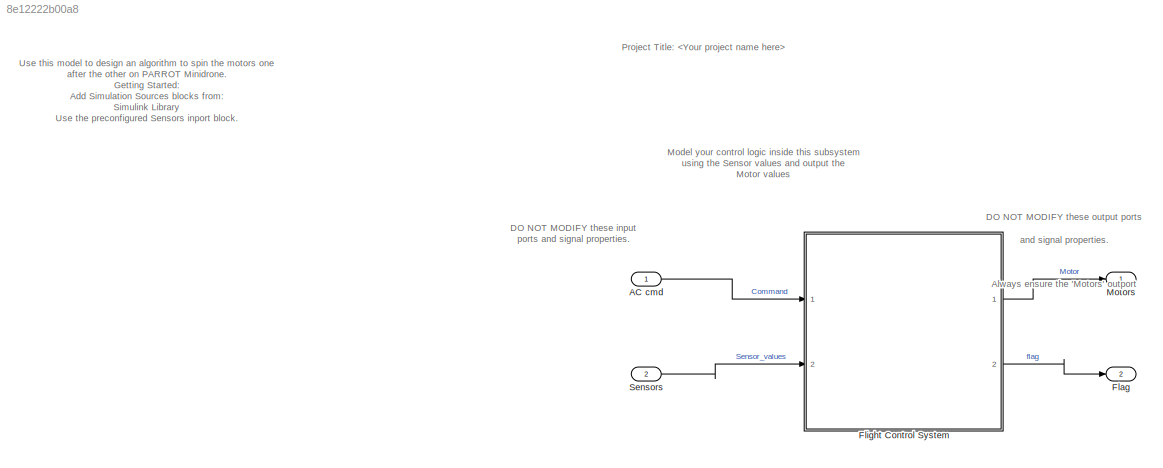
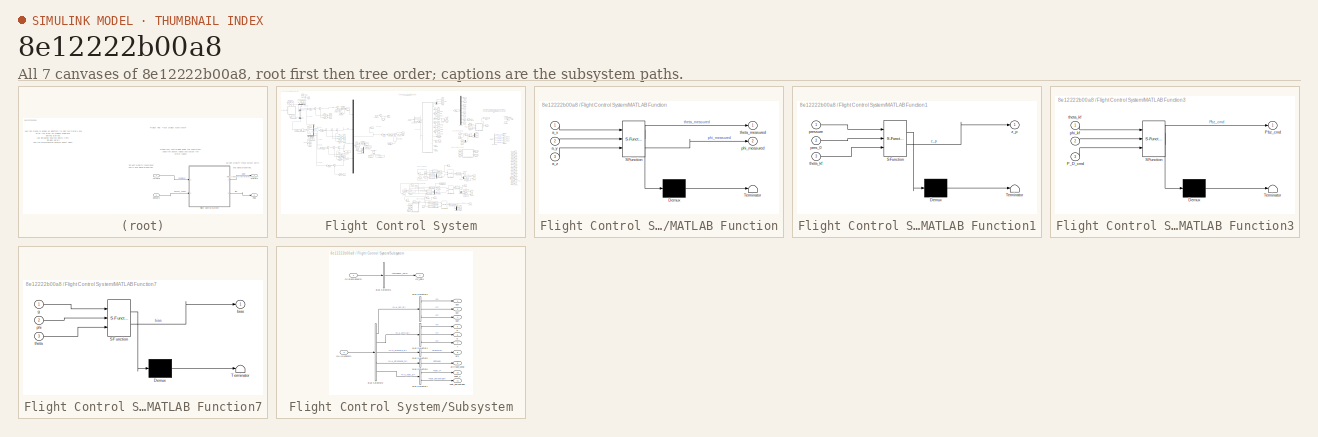
[diagram: thumbnail index - all 7 canvases of the model, root first then tree order]
MODEL slx_8e12222b00a8
KIND model
CONFIG AbsTol = auto
CONFIG EnableMultiTasking = off
CONFIG FixedStep = auto
CONFIG InitFcn = load('BusDefinitions.mat')
CONFIG MaxStep = auto
CONFIG MinStep = auto
CONFIG RelTol = 1e-3
CONFIG SampleTimeConstraint = Unconstrained
CONFIG SolverName = FixedStepAuto
CONFIG StartTime = 0.0
CONFIG StopTime = 30
BLOCK [Inport] AC cmd
  BusOutputAsStruct = on
  OutDataTypeStr = Bus: CommandBus
BLOCK [Outport] Flag
  OutDataTypeStr = uint8
  Port = 2
  PortDimensions = 1
  VectorParamsAs1DForOutWhenUnconnected = off
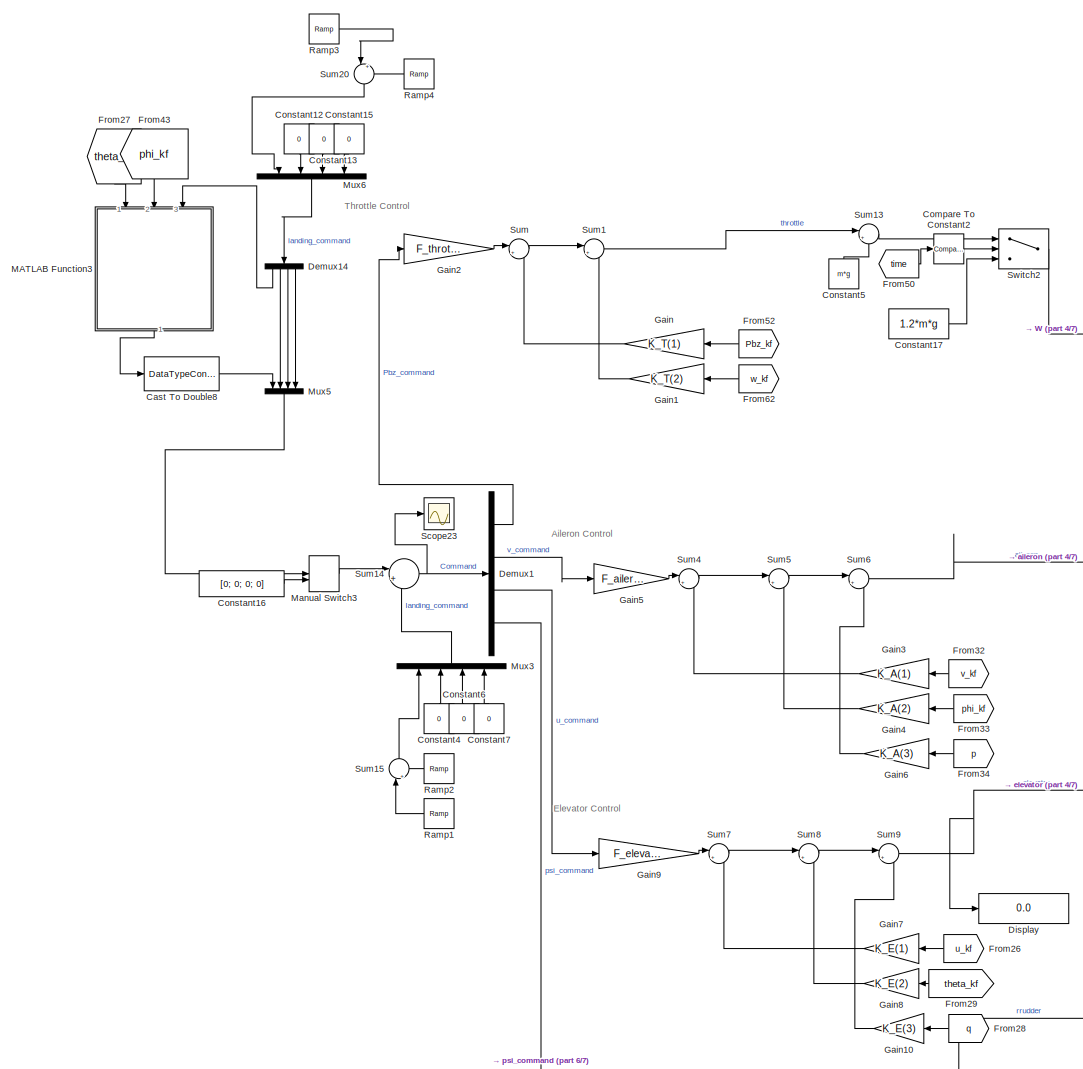
[diagram: Flight Control System - part 1/7, top left region]
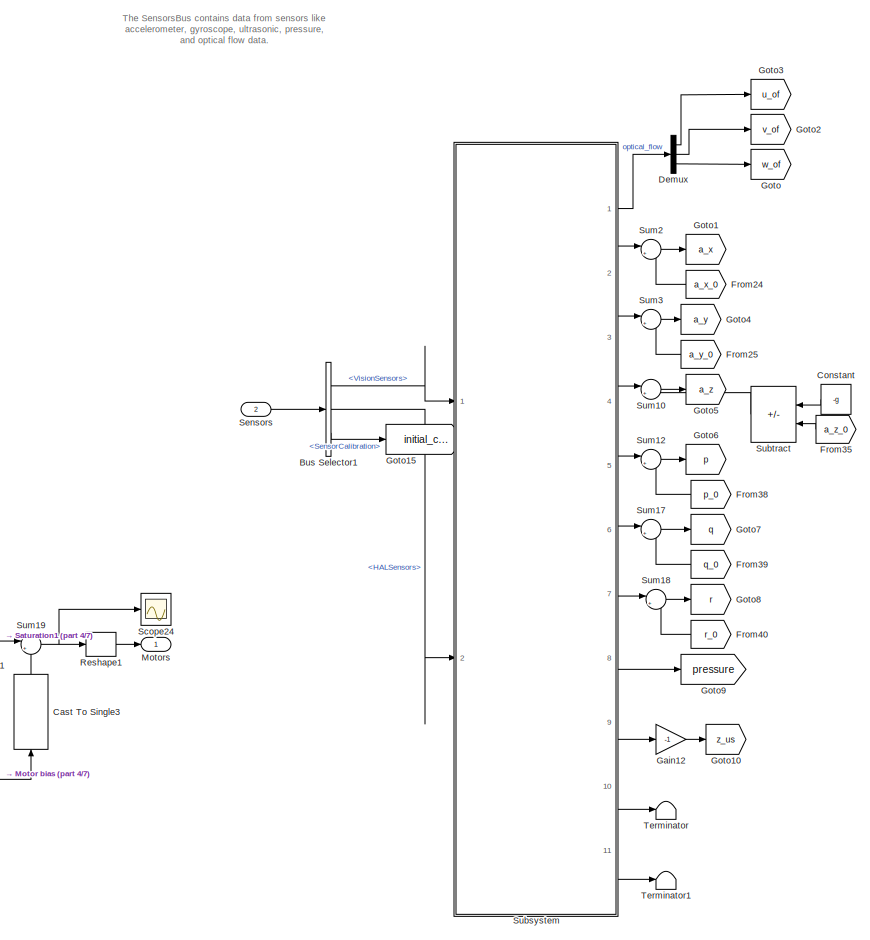
[diagram: Flight Control System - part 2/7, top center region]
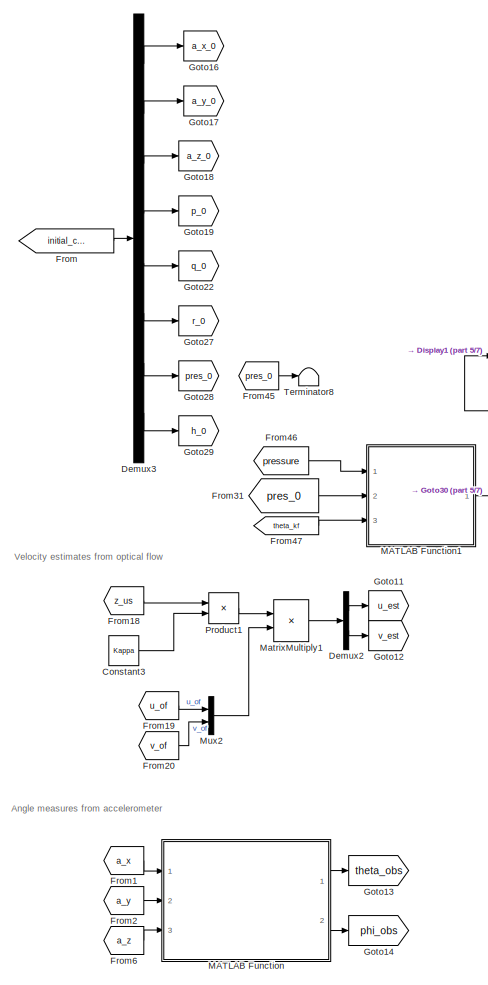
[diagram: Flight Control System - part 3/7, top right region]
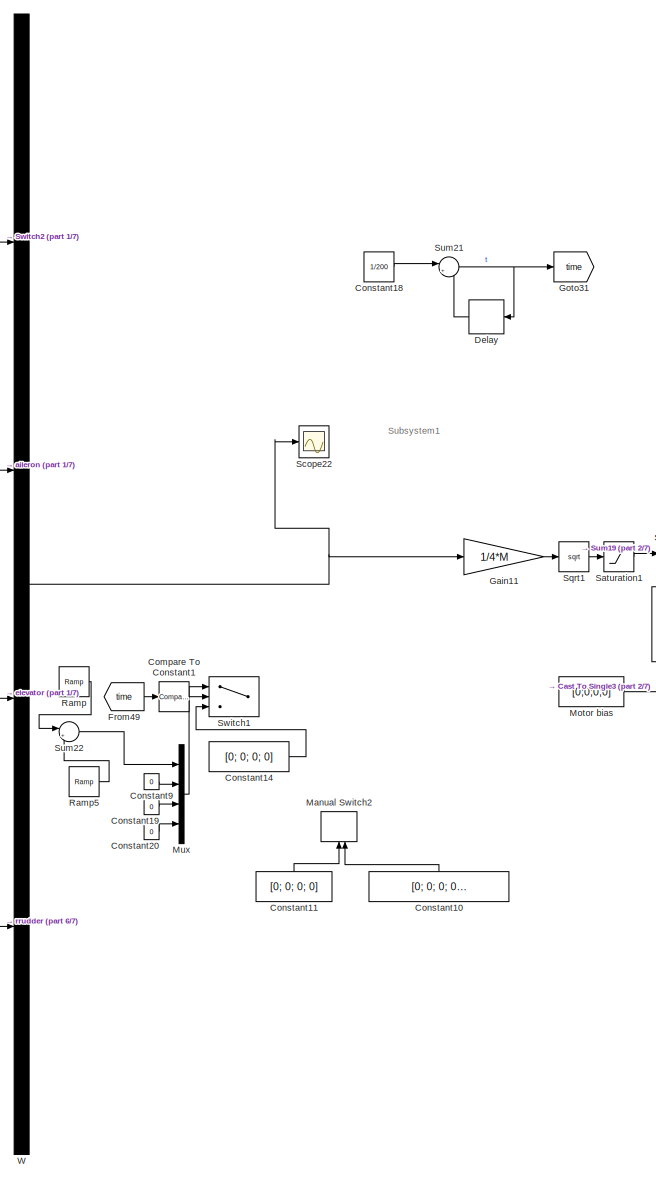
[diagram: Flight Control System - part 4/7, central region]
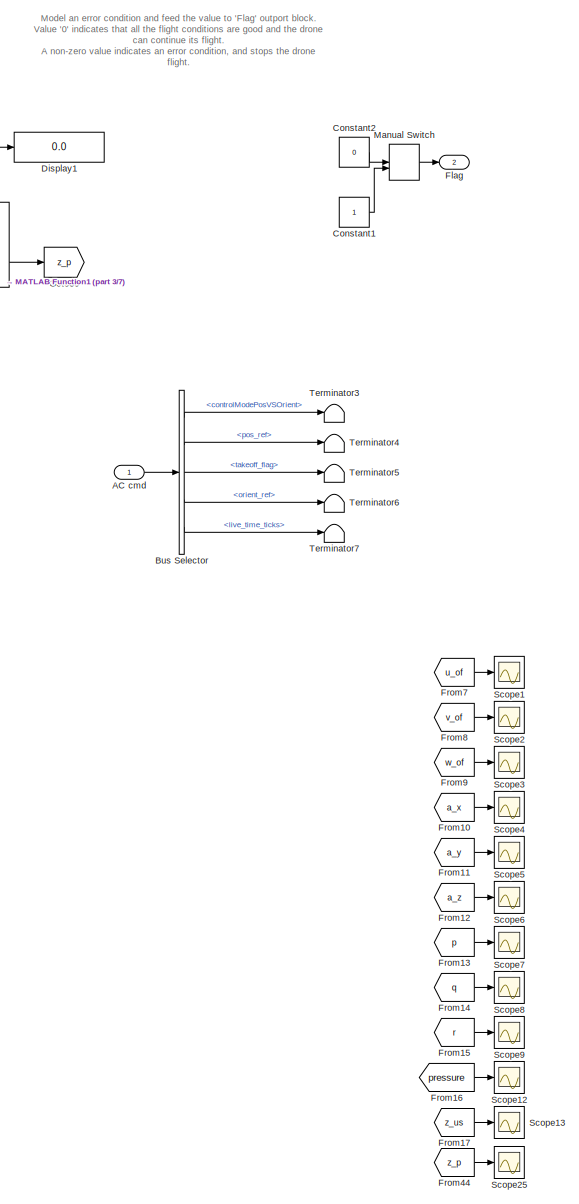
[diagram: Flight Control System - part 5/7, middle right region]
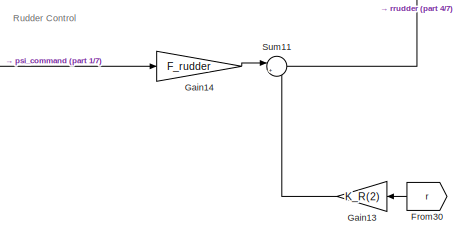
[diagram: Flight Control System - part 6/7, middle left region]
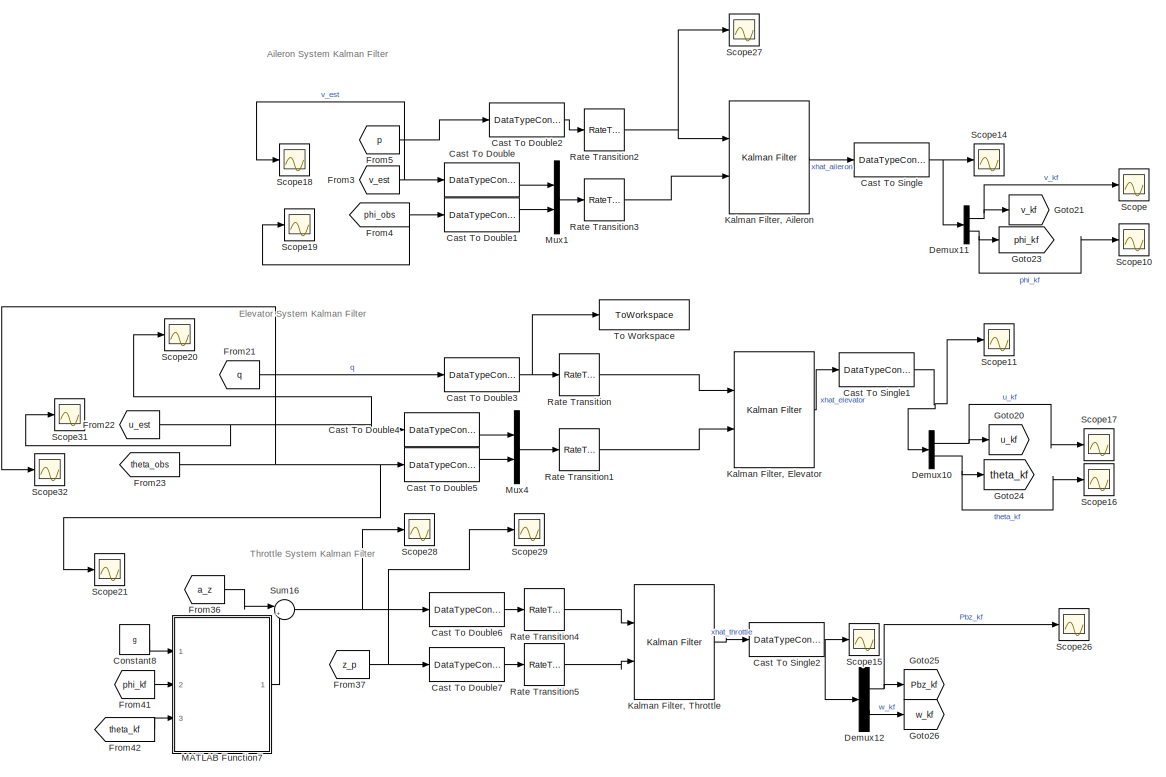
[diagram: Flight Control System - part 7/7, bottom center region]
BLOCK [SubSystem] Flight Control System
  InitFcn = codertarget.parrot.internal.fcsSubsystemCallback(gcb);
  Ports = [2, 2]
  RTWSystemCode = Reusable function
  RequestExecContextInheritance = off
BLOCK [Inport] Flight Control System/AC cmd
BLOCK [BusSelector] Flight Control System/Bus Selector
  OutputSignals = controlModePosVSOrient,pos_ref,takeoff_flag,orient_ref,live_time_ticks
  Ports = [1, 5]
BLOCK [BusSelector] Flight Control System/Bus Selector1
  OutputSignals = VisionSensors,HALSensors,SensorCalibration
  Ports = [1, 3]
BLOCK [DataTypeConversion] Flight Control System/Cast To Double
  OutDataTypeStr = double
  RndMeth = Floor
  SaturateOnIntegerOverflow = off
BLOCK [DataTypeConversion] Flight Control System/Cast To Double1
  OutDataTypeStr = double
  RndMeth = Floor
  SaturateOnIntegerOverflow = off
BLOCK [DataTypeConversion] Flight Control System/Cast To Double2
  OutDataTypeStr = double
  RndMeth = Floor
  SaturateOnIntegerOverflow = off
BLOCK [DataTypeConversion] Flight Control System/Cast To Double3
  OutDataTypeStr = double
  RndMeth = Floor
  SaturateOnIntegerOverflow = off
BLOCK [DataTypeConversion] Flight Control System/Cast To Double4
  OutDataTypeStr = double
  RndMeth = Floor
  SaturateOnIntegerOverflow = off
BLOCK [DataTypeConversion] Flight Control System/Cast To Double5
  OutDataTypeStr = double
  RndMeth = Floor
  SaturateOnIntegerOverflow = off
BLOCK [DataTypeConversion] Flight Control System/Cast To Double6
  OutDataTypeStr = double
  RndMeth = Floor
  SaturateOnIntegerOverflow = off
BLOCK [DataTypeConversion] Flight Control System/Cast To Double7
  OutDataTypeStr = double
  RndMeth = Floor
  SaturateOnIntegerOverflow = off
BLOCK [DataTypeConversion] Flight Control System/Cast To Double8
  OutDataTypeStr = double
  RndMeth = Floor
  SaturateOnIntegerOverflow = off
BLOCK [DataTypeConversion] Flight Control System/Cast To Single
  OutDataTypeStr = single
  RndMeth = Floor
  SaturateOnIntegerOverflow = off
BLOCK [DataTypeConversion] Flight Control System/Cast To Single1
  OutDataTypeStr = single
  RndMeth = Floor
  SaturateOnIntegerOverflow = off
BLOCK [DataTypeConversion] Flight Control System/Cast To Single2
  OutDataTypeStr = single
  RndMeth = Floor
  SaturateOnIntegerOverflow = off
BLOCK [DataTypeConversion] Flight Control System/Cast To Single3
  NameLocation = right
  OutDataTypeStr = single
  RndMeth = Floor
  SaturateOnIntegerOverflow = off
BLOCK [Reference] Flight Control System/Compare To Constant1  REF=simulink/Logic and Bit
Operations/Compare
To Constant
  Commented = on
  Ports = [1, 1]
  SourceBlock = simulink/Logic and Bit\nOperations/Compare\nTo Constant
  SourceProductBaseCode = SL
  SourceType = Compare To Constant
BLOCK [Reference] Flight Control System/Compare To Constant2  REF=simulink/Logic and Bit
Operations/Compare
To Constant
  Ports = [1, 1]
  SourceBlock = simulink/Logic and Bit\nOperations/Compare\nTo Constant
  SourceProductBaseCode = SL
  SourceType = Compare To Constant
BLOCK [Constant] Flight Control System/Constant
  NameLocation = top
  Value = -g
BLOCK [Constant] Flight Control System/Constant1
  OutDataTypeStr = uint8
BLOCK [Constant] Flight Control System/Constant10
  Commented = on
  NameLocation = right
  Value = [0; 0; 0; 0.004]
BLOCK [Constant] Flight Control System/Constant11
  Commented = on
  NameLocation = right
  Value = [0; 0; 0; 0]
BLOCK [Constant] Flight Control System/Constant12
  NameLocation = left
  Value = 0
BLOCK [Constant] Flight Control System/Constant13
  NameLocation = left
  Value = 0
BLOCK [Constant] Flight Control System/Constant14
  Commented = on
  Value = [0; 0; 0; 0]
BLOCK [Constant] Flight Control System/Constant15
  NameLocation = left
  Value = 0
BLOCK [Constant] Flight Control System/Constant16
  Value = [0; 0; 0; 0]
BLOCK [Constant] Flight Control System/Constant17
  Value = 1.2*m*g
BLOCK [Constant] Flight Control System/Constant18
  Value = 1/200
BLOCK [Constant] Flight Control System/Constant19
  Commented = on
  Value = 0
BLOCK [Constant] Flight Control System/Constant2
  OutDataTypeStr = uint8
  Value = 0
BLOCK [Constant] Flight Control System/Constant20
  Commented = on
  Value = 0
BLOCK [Constant] Flight Control System/Constant3
  Value = Kappa
BLOCK [Constant] Flight Control System/Constant4
  NameLocation = right
  Value = 0
BLOCK [Constant] Flight Control System/Constant5
  NameLocation = right
  Value = m*g
BLOCK [Constant] Flight Control System/Constant6
  NameLocation = right
  Value = 0
BLOCK [Constant] Flight Control System/Constant7
  NameLocation = right
  Value = 0
BLOCK [Constant] Flight Control System/Constant8
  Value = g
BLOCK [Constant] Flight Control System/Constant9
  Commented = on
  Value = 0
BLOCK [Delay] Flight Control System/Delay
  DelayLength = 1
  InputPortMap = u0
  NameLocation = top
  Ports = [1, 1]
  SampleTime = 1/200
BLOCK [Demux] Flight Control System/Demux
  Outputs = 3
  Ports = [1, 3]
BLOCK [Demux] Flight Control System/Demux1
  Ports = [1, 4]
BLOCK [Demux] Flight Control System/Demux10
  Outputs = 2
  Ports = [1, 2]
BLOCK [Demux] Flight Control System/Demux11
  Outputs = 2
  Ports = [1, 2]
BLOCK [Demux] Flight Control System/Demux12
  Outputs = 2
  Ports = [1, 2]
BLOCK [Demux] Flight Control System/Demux14
  NameLocation = left
  Ports = [1, 4]
BLOCK [Demux] Flight Control System/Demux2
  Outputs = 2
  Ports = [1, 2]
BLOCK [Demux] Flight Control System/Demux3
  Outputs = 8
  Ports = [1, 8]
BLOCK [Display] Flight Control System/Display
  Decimation = 1
  Ports = [1]
BLOCK [Display] Flight Control System/Display1
  Decimation = 1
  Ports = [1]
BLOCK [Outport] Flight Control System/Flag
  Port = 2
  VectorParamsAs1DForOutWhenUnconnected = off
BLOCK [From] Flight Control System/From
  GotoTag = initial_conditions
BLOCK [From] Flight Control System/From1
  GotoTag = a_x
BLOCK [From] Flight Control System/From10
  GotoTag = a_x
BLOCK [From] Flight Control System/From11
  GotoTag = a_y
  NameLocation = top
BLOCK [From] Flight Control System/From12
  GotoTag = a_z
BLOCK [From] Flight Control System/From13
  GotoTag = p
BLOCK [From] Flight Control System/From14
  GotoTag = q
BLOCK [From] Flight Control System/From15
  GotoTag = r
BLOCK [From] Flight Control System/From16
  GotoTag = pressure
BLOCK [From] Flight Control System/From17
  GotoTag = z_us
BLOCK [From] Flight Control System/From18
  GotoTag = z_us
BLOCK [From] Flight Control System/From19
  GotoTag = u_of
BLOCK [From] Flight Control System/From2
  GotoTag = a_y
BLOCK [From] Flight Control System/From20
  GotoTag = v_of
BLOCK [From] Flight Control System/From21
  GotoTag = q
BLOCK [From] Flight Control System/From22
  GotoTag = u_est
BLOCK [From] Flight Control System/From23
  GotoTag = theta_obs
BLOCK [From] Flight Control System/From24
  GotoTag = a_x_0
  NameLocation = top
BLOCK [From] Flight Control System/From25
  GotoTag = a_y_0
  NameLocation = top
BLOCK [From] Flight Control System/From26
  GotoTag = u_kf
  NameLocation = top
BLOCK [From] Flight Control System/From27
  GotoTag = theta_kf
  NameLocation = left
BLOCK [From] Flight Control System/From28
  GotoTag = q
  NameLocation = top
BLOCK [From] Flight Control System/From29
  GotoTag = theta_kf
  NameLocation = top
BLOCK [From] Flight Control System/From3
  GotoTag = v_est
BLOCK [From] Flight Control System/From30
  GotoTag = r
  NameLocation = top
BLOCK [From] Flight Control System/From31
  GotoTag = pres_0
BLOCK [From] Flight Control System/From32
  GotoTag = v_kf
  NameLocation = top
BLOCK [From] Flight Control System/From33
  GotoTag = phi_kf
  NameLocation = top
BLOCK [From] Flight Control System/From34
  GotoTag = p
  NameLocation = top
BLOCK [From] Flight Control System/From35
  GotoTag = a_z_0
  NameLocation = top
BLOCK [From] Flight Control System/From36
  GotoTag = a_z
BLOCK [From] Flight Control System/From37
  GotoTag = z_p
BLOCK [From] Flight Control System/From38
  GotoTag = p_0
  NameLocation = top
BLOCK [From] Flight Control System/From39
  GotoTag = q_0
  NameLocation = top
BLOCK [From] Flight Control System/From4
  GotoTag = phi_obs
BLOCK [From] Flight Control System/From40
  GotoTag = r_0
  NameLocation = top
BLOCK [From] Flight Control System/From41
  GotoTag = phi_kf
BLOCK [From] Flight Control System/From42
  GotoTag = theta_kf
BLOCK [From] Flight Control System/From43
  GotoTag = phi_kf
  NameLocation = left
BLOCK [From] Flight Control System/From44
  GotoTag = z_p
BLOCK [From] Flight Control System/From45
  GotoTag = pres_0
BLOCK [From] Flight Control System/From46
  GotoTag = pressure
BLOCK [From] Flight Control System/From47
  GotoTag = theta_kf
BLOCK [From] Flight Control System/From49
  Commented = on
  GotoTag = time
BLOCK [From] Flight Control System/From5
  GotoTag = p
BLOCK [From] Flight Control System/From50
  GotoTag = time
BLOCK [From] Flight Control System/From52
  GotoTag = Pbz_kf
  NameLocation = top
BLOCK [From] Flight Control System/From6
  GotoTag = a_z
BLOCK [From] Flight Control System/From62
  GotoTag = w_kf
  NameLocation = top
BLOCK [From] Flight Control System/From7
  GotoTag = u_of
BLOCK [From] Flight Control System/From8
  GotoTag = v_of
BLOCK [From] Flight Control System/From9
  GotoTag = w_of
BLOCK [Gain] Flight Control System/Gain
  Gain = K_T(1)
BLOCK [Gain] Flight Control System/Gain1
  Gain = K_T(2)
BLOCK [Gain] Flight Control System/Gain10
  Gain = K_E(3)
BLOCK [Gain] Flight Control System/Gain11
  Gain = 1/4*M
  Multiplication = Matrix(K*u)
BLOCK [Gain] Flight Control System/Gain12
  Gain = -1
BLOCK [Gain] Flight Control System/Gain13
  Gain = K_R(2)
BLOCK [Gain] Flight Control System/Gain14
  Gain = F_rudder
BLOCK [Gain] Flight Control System/Gain2
  Gain = F_throttle
BLOCK [Gain] Flight Control System/Gain3
  Gain = K_A(1)
BLOCK [Gain] Flight Control System/Gain4
  Gain = K_A(2)
BLOCK [Gain] Flight Control System/Gain5
  Gain = F_aileron
BLOCK [Gain] Flight Control System/Gain6
  Gain = K_A(3)
BLOCK [Gain] Flight Control System/Gain7
  Gain = K_E(1)
BLOCK [Gain] Flight Control System/Gain8
  Gain = K_E(2)
BLOCK [Gain] Flight Control System/Gain9
  Gain = F_elevator
BLOCK [Goto] Flight Control System/Goto
  GotoTag = w_of
BLOCK [Goto] Flight Control System/Goto1
  GotoTag = a_x
BLOCK [Goto] Flight Control System/Goto10
  GotoTag = z_us
BLOCK [Goto] Flight Control System/Goto11
  GotoTag = u_est
BLOCK [Goto] Flight Control System/Goto12
  GotoTag = v_est
BLOCK [Goto] Flight Control System/Goto13
  GotoTag = theta_obs
BLOCK [Goto] Flight Control System/Goto14
  GotoTag = phi_obs
BLOCK [Goto] Flight Control System/Goto15
  GotoTag = initial_conditions
BLOCK [Goto] Flight Control System/Goto16
  GotoTag = a_x_0
BLOCK [Goto] Flight Control System/Goto17
  GotoTag = a_y_0
BLOCK [Goto] Flight Control System/Goto18
  GotoTag = a_z_0
BLOCK [Goto] Flight Control System/Goto19
  GotoTag = p_0
BLOCK [Goto] Flight Control System/Goto2
  GotoTag = v_of
BLOCK [Goto] Flight Control System/Goto20
  GotoTag = u_kf
BLOCK [Goto] Flight Control System/Goto21
  GotoTag = v_kf
BLOCK [Goto] Flight Control System/Goto22
  GotoTag = q_0
BLOCK [Goto] Flight Control System/Goto23
  GotoTag = phi_kf
BLOCK [Goto] Flight Control System/Goto24
  GotoTag = theta_kf
BLOCK [Goto] Flight Control System/Goto25
  GotoTag = Pbz_kf
BLOCK [Goto] Flight Control System/Goto26
  GotoTag = w_kf
BLOCK [Goto] Flight Control System/Goto27
  GotoTag = r_0
BLOCK [Goto] Flight Control System/Goto28
  GotoTag = pres_0
BLOCK [Goto] Flight Control System/Goto29
  GotoTag = h_0
BLOCK [Goto] Flight Control System/Goto3
  GotoTag = u_of
BLOCK [Goto] Flight Control System/Goto30
  GotoTag = z_p
BLOCK [Goto] Flight Control System/Goto31
  GotoTag = time
BLOCK [Goto] Flight Control System/Goto4
  GotoTag = a_y
BLOCK [Goto] Flight Control System/Goto5
  GotoTag = a_z
BLOCK [Goto] Flight Control System/Goto6
  GotoTag = p
BLOCK [Goto] Flight Control System/Goto7
  GotoTag = q
BLOCK [Goto] Flight Control System/Goto8
  GotoTag = r
BLOCK [Goto] Flight Control System/Goto9
  GotoTag = pressure
BLOCK [Reference] Flight Control System/Kalman Filter, Aileron  REF=ctrlSharedLib/Kalman Filter
  Ports = [2, 1]
  SourceBlock = ctrlSharedLib/Kalman Filter
  SourceProductBaseCode = CT,ID
  SourceType = ctrlKalmanFilter
BLOCK [Reference] Flight Control System/Kalman Filter, Elevator  REF=ctrlSharedLib/Kalman Filter
  Ports = [2, 1]
  SourceBlock = ctrlSharedLib/Kalman Filter
  SourceProductBaseCode = CT,ID
  SourceType = ctrlKalmanFilter
BLOCK [Reference] Flight Control System/Kalman Filter, Throttle  REF=ctrlSharedLib/Kalman Filter
  Ports = [2, 1]
  SourceBlock = ctrlSharedLib/Kalman Filter
  SourceProductBaseCode = CT,ID
  SourceType = ctrlKalmanFilter
BLOCK [SubSystem] Flight Control System/MATLAB Function
  ErrorFcn = Stateflow.Translate.translate
  PermitHierarchicalResolution = ExplicitOnly
  Ports = [3, 2]
  RequestExecContextInheritance = off
  SFBlockType = MATLAB Function
  TreatAsAtomicUnit = on
BLOCK [Demux] Flight Control System/MATLAB Function/ Demux 
  Outputs = 1
  Ports = [1, 1]
BLOCK [S-Function] Flight Control System/MATLAB Function/ SFunction 
  EnableBusSupport = on
  FunctionName = sf_sfun
  PortCounts = [3 3]
  Ports = [3, 3]
  SFcnIsStateOwnerBlock = off
  SFunctionDeploymentMode = off
  Tag = Stateflow S-Function 2
BLOCK [Terminator] Flight Control System/MATLAB Function/ Terminator 
BLOCK [Inport] Flight Control System/MATLAB Function/a_x
BLOCK [Inport] Flight Control System/MATLAB Function/a_y
  Port = 2
BLOCK [Inport] Flight Control System/MATLAB Function/a_z
  Port = 3
BLOCK [Outport] Flight Control System/MATLAB Function/phi_measured
  Port = 2
BLOCK [Outport] Flight Control System/MATLAB Function/theta_measured
BLOCK [SubSystem] Flight Control System/MATLAB Function1
  ErrorFcn = Stateflow.Translate.translate
  PermitHierarchicalResolution = ExplicitOnly
  Ports = [3, 1]
  RequestExecContextInheritance = off
  SFBlockType = MATLAB Function
  TreatAsAtomicUnit = on
BLOCK [Demux] Flight Control System/MATLAB Function1/ Demux 
  Outputs = 1
  Ports = [1, 1]
BLOCK [S-Function] Flight Control System/MATLAB Function1/ SFunction 
  EnableBusSupport = on
  FunctionName = sf_sfun
  PortCounts = [3 2]
  Ports = [3, 2]
  SFcnIsStateOwnerBlock = off
  SFunctionDeploymentMode = off
  Tag = Stateflow S-Function 1
BLOCK [Terminator] Flight Control System/MATLAB Function1/ Terminator 
BLOCK [Inport] Flight Control System/MATLAB Function1/pres_0
  Port = 2
BLOCK [Inport] Flight Control System/MATLAB Function1/pressure
BLOCK [Inport] Flight Control System/MATLAB Function1/theta_kf
  Port = 3
BLOCK [Outport] Flight Control System/MATLAB Function1/z_p
BLOCK [SubSystem] Flight Control System/MATLAB Function3
  ErrorFcn = Stateflow.Translate.translate
  NameLocation = left
  PermitHierarchicalResolution = ExplicitOnly
  Ports = [3, 1]
  RequestExecContextInheritance = off
  SFBlockType = MATLAB Function
  TreatAsAtomicUnit = on
BLOCK [Demux] Flight Control System/MATLAB Function3/ Demux 
  Outputs = 1
  Ports = [1, 1]
BLOCK [S-Function] Flight Control System/MATLAB Function3/ SFunction 
  EnableBusSupport = on
  FunctionName = sf_sfun
  PortCounts = [3 2]
  Ports = [3, 2]
  SFcnIsStateOwnerBlock = off
  SFunctionDeploymentMode = off
  Tag = Stateflow S-Function 4
BLOCK [Terminator] Flight Control System/MATLAB Function3/ Terminator 
BLOCK [Inport] Flight Control System/MATLAB Function3/P_D_cmd
  Port = 3
BLOCK [Outport] Flight Control System/MATLAB Function3/Pbz_cmd
BLOCK [Inport] Flight Control System/MATLAB Function3/phi_kf
  Port = 2
BLOCK [Inport] Flight Control System/MATLAB Function3/theta_kf
BLOCK [SubSystem] Flight Control System/MATLAB Function7
  ErrorFcn = Stateflow.Translate.translate
  PermitHierarchicalResolution = ExplicitOnly
  Ports = [3, 1]
  RequestExecContextInheritance = off
  SFBlockType = MATLAB Function
  TreatAsAtomicUnit = on
BLOCK [Demux] Flight Control System/MATLAB Function7/ Demux 
  Outputs = 1
  Ports = [1, 1]
BLOCK [S-Function] Flight Control System/MATLAB Function7/ SFunction 
  EnableBusSupport = on
  FunctionName = sf_sfun
  PortCounts = [3 2]
  Ports = [3, 2]
  SFcnIsStateOwnerBlock = off
  SFunctionDeploymentMode = off
  Tag = Stateflow S-Function 7
BLOCK [Terminator] Flight Control System/MATLAB Function7/ Terminator 
BLOCK [Outport] Flight Control System/MATLAB Function7/bias
BLOCK [Inport] Flight Control System/MATLAB Function7/g
BLOCK [Inport] Flight Control System/MATLAB Function7/phi
  Port = 2
BLOCK [Inport] Flight Control System/MATLAB Function7/theta
  Port = 3
BLOCK [ManualSwitch] Flight Control System/Manual Switch
BLOCK [ManualSwitch] Flight Control System/Manual Switch2
  Commented = on
  NameLocation = right
BLOCK [ManualSwitch] Flight Control System/Manual Switch3
BLOCK [Product] Flight Control System/MatrixMultiply1
  Ports = [2, 1]
BLOCK [Constant] Flight Control System/Motor bias
  Value = [0;0;0;0]
BLOCK [Outport] Flight Control System/Motors
  VectorParamsAs1DForOutWhenUnconnected = off
BLOCK [Mux] Flight Control System/Mux
  Commented = on
  DisplayOption = bar
  Ports = [4, 1]
BLOCK [Mux] Flight Control System/Mux1
  DisplayOption = bar
  Inputs = 2
  Ports = [2, 1]
BLOCK [Mux] Flight Control System/Mux2
  DisplayOption = bar
  Inputs = 2
  Ports = [2, 1]
BLOCK [Mux] Flight Control System/Mux3
  DisplayOption = bar
  NameLocation = right
  Ports = [4, 1]
BLOCK [Mux] Flight Control System/Mux4
  DisplayOption = bar
  Inputs = 2
  Ports = [2, 1]
BLOCK [Mux] Flight Control System/Mux5
  DisplayOption = bar
  NameLocation = left
  Ports = [4, 1]
BLOCK [Mux] Flight Control System/Mux6
  DisplayOption = bar
  NameLocation = left
  Ports = [4, 1]
BLOCK [Product] Flight Control System/Product1
  Ports = [2, 1]
BLOCK [Reference] Flight Control System/Ramp  REF=simulink/Sources/Ramp
  Commented = on
  Ports = [0, 1]
  SourceBlock = simulink/Sources/Ramp
  SourceProductBaseCode = SL
  SourceType = Ramp
BLOCK [Reference] Flight Control System/Ramp1  REF=simulink/Sources/Ramp
  NameLocation = top
  Ports = [0, 1]
  SourceBlock = simulink/Sources/Ramp
  SourceProductBaseCode = SL
  SourceType = Ramp
BLOCK [Reference] Flight Control System/Ramp2  REF=simulink/Sources/Ramp
  NameLocation = top
  Ports = [0, 1]
  SourceBlock = simulink/Sources/Ramp
  SourceProductBaseCode = SL
  SourceType = Ramp
BLOCK [Reference] Flight Control System/Ramp3  REF=simulink/Sources/Ramp
  Ports = [0, 1]
  SourceBlock = simulink/Sources/Ramp
  SourceProductBaseCode = SL
  SourceType = Ramp
BLOCK [Reference] Flight Control System/Ramp4  REF=simulink/Sources/Ramp
  NameLocation = top
  Ports = [0, 1]
  SourceBlock = simulink/Sources/Ramp
  SourceProductBaseCode = SL
  SourceType = Ramp
BLOCK [Reference] Flight Control System/Ramp5  REF=simulink/Sources/Ramp
  Commented = on
  Ports = [0, 1]
  SourceBlock = simulink/Sources/Ramp
  SourceProductBaseCode = SL
  SourceType = Ramp
BLOCK [RateTransition] Flight Control System/Rate Transition
  OutPortSampleTime = dt
BLOCK [RateTransition] Flight Control System/Rate Transition1
  OutPortSampleTime = dt
BLOCK [RateTransition] Flight Control System/Rate Transition2
  OutPortSampleTime = dt
BLOCK [RateTransition] Flight Control System/Rate Transition3
  OutPortSampleTime = dt
BLOCK [RateTransition] Flight Control System/Rate Transition4
  OutPortSampleTime = dt
BLOCK [RateTransition] Flight Control System/Rate Transition5
  OutPortSampleTime = dt
BLOCK [Reshape] Flight Control System/Reshape1
  OutputDimensionality = Customize
  OutputDimensions = [1,4]
  Ports = [1, 1]
BLOCK [Saturate] Flight Control System/Saturation1
  LowerLimit = 0
  OutDataTypeStr = single
  UpperLimit = 500
BLOCK [Scope] Flight Control System/Scope
  Floating = off
  NumInputPorts = 1
  Ports = [1]
  ScopeSpecificationString = Simulink.scopes.TimeScopeBlockCfg('CurrentConfiguration', extmgr.ConfigurationSet(extmgr.Configuration('Core','General UI',true),extmgr.Configuration('Core','Source UI',true),extmgr.Configuration('Sources','WiredSimulink',true,'DataLoggingVariableName','v_drone','DataLogging',true,'DataLoggingSaveFormat','StructureWithTime'),extmgr.Configuration('Visuals','Time Domain',true,'SerializedDisplays',{s...<+1406ch>
BLOCK [Scope] Flight Control System/Scope1
  Floating = off
  NumInputPorts = 1
  Ports = [1]
  ScopeSpecificationString = Simulink.scopes.TimeScopeBlockCfg('CurrentConfiguration', extmgr.ConfigurationSet(extmgr.Configuration('Core','General UI',true),extmgr.Configuration('Core','Source UI',true),extmgr.Configuration('Sources','WiredSimulink',true,'DataLoggingVariableName','u','DataLogging',true,'DataLoggingSaveFormat','StructureWithTime'),extmgr.Configuration('Visuals','Time Domain',true,'SerializedDisplays',{struct(...<+1420ch>
BLOCK [Scope] Flight Control System/Scope10
  Floating = off
  NumInputPorts = 1
  Ports = [1]
  ScopeSpecificationString = Simulink.scopes.TimeScopeBlockCfg('CurrentConfiguration', extmgr.ConfigurationSet(extmgr.Configuration('Core','General UI',true),extmgr.Configuration('Core','Source UI',true),extmgr.Configuration('Sources','WiredSimulink',true,'DataLoggingVariableName','phi_drone','DataLogging',true,'DataLoggingSaveFormat','StructureWithTime'),extmgr.Configuration('Visuals','Time Domain',true,'SerializedDisplays',...<+1406ch>
BLOCK [Scope] Flight Control System/Scope11
  Floating = off
  NumInputPorts = 1
  Ports = [1]
  ScopeSpecificationString = Simulink.scopes.TimeScopeBlockCfg('CurrentConfiguration', extmgr.ConfigurationSet(extmgr.Configuration('Core','General UI',true),extmgr.Configuration('Core','Source UI',true),extmgr.Configuration('Sources','WiredSimulink',true,'DataLoggingVariableName','ScopeData1','DataLogging',true,'DataLoggingSaveFormat','StructureWithTime'),extmgr.Configuration('Visuals','Time Domain',true,'SerializedDisplays'...<+1459ch>
BLOCK [Scope] Flight Control System/Scope12
  Floating = off
  NumInputPorts = 1
  Ports = [1]
  ScopeSpecificationString = Simulink.scopes.TimeScopeBlockCfg('CurrentConfiguration', extmgr.ConfigurationSet(extmgr.Configuration('Core','General UI',true),extmgr.Configuration('Core','Source UI',true),extmgr.Configuration('Sources','WiredSimulink',true,'DataLoggingVariableName','pressure','DataLogging',true,'DataLoggingSaveFormat','StructureWithTime'),extmgr.Configuration('Visuals','Time Domain',true,'SerializedDisplays',{...<+1378ch>
BLOCK [Scope] Flight Control System/Scope13
  Floating = off
  NumInputPorts = 1
  Ports = [1]
  ScopeSpecificationString = Simulink.scopes.TimeScopeBlockCfg('CurrentConfiguration', extmgr.ConfigurationSet(extmgr.Configuration('Core','General UI',true),extmgr.Configuration('Core','Source UI',true),extmgr.Configuration('Sources','WiredSimulink',true,'DataLoggingVariableName','z_ultrasonic','DataLogging',true,'DataLoggingSaveFormat','StructureWithTime'),extmgr.Configuration('Visuals','Time Domain',true,'SerializedDisplay...<+1382ch>
BLOCK [Scope] Flight Control System/Scope14
  Floating = off
  NumInputPorts = 1
  Ports = [1]
  ScopeSpecificationString = Simulink.scopes.TimeScopeBlockCfg('CurrentConfiguration', extmgr.ConfigurationSet(extmgr.Configuration('Core','General UI',true),extmgr.Configuration('Core','Source UI',true),extmgr.Configuration('Sources','WiredSimulink',true,'DataLoggingVariableName','ScopeData2','DataLogging',true,'DataLoggingSaveFormat','StructureWithTime'),extmgr.Configuration('Visuals','Time Domain',true,'SerializedDisplays'...<+1444ch>
BLOCK [Scope] Flight Control System/Scope15
  Floating = off
  NumInputPorts = 1
  Ports = [1]
  ScopeSpecificationString = Simulink.scopes.TimeScopeBlockCfg('CurrentConfiguration', extmgr.ConfigurationSet(extmgr.Configuration('Core','General UI',true),extmgr.Configuration('Core','Source UI',true),extmgr.Configuration('Sources','WiredSimulink',true,'DataLoggingVariableName','ScopeData3','DataLogging',true,'DataLoggingSaveFormat','StructureWithTime'),extmgr.Configuration('Visuals','Time Domain',true,'SerializedDisplays'...<+1459ch>
BLOCK [Scope] Flight Control System/Scope16
  Floating = off
  NumInputPorts = 1
  Ports = [1]
  ScopeSpecificationString = Simulink.scopes.TimeScopeBlockCfg('CurrentConfiguration', extmgr.ConfigurationSet(extmgr.Configuration('Core','General UI',true),extmgr.Configuration('Core','Source UI',true),extmgr.Configuration('Sources','WiredSimulink',true,'DataLoggingVariableName','theta_drone','DataLogging',true,'DataLoggingSaveFormat','StructureWithTime'),extmgr.Configuration('Visuals','Time Domain',true,'SerializedDisplays...<+1381ch>
BLOCK [Scope] Flight Control System/Scope17
  Floating = off
  NumInputPorts = 1
  Ports = [1]
  ScopeSpecificationString = Simulink.scopes.TimeScopeBlockCfg('CurrentConfiguration', extmgr.ConfigurationSet(extmgr.Configuration('Core','General UI',true),extmgr.Configuration('Core','Source UI',true),extmgr.Configuration('Sources','WiredSimulink',true,'DataLoggingVariableName','u_drone','DataLogging',true,'DataLoggingSaveFormat','StructureWithTime'),extmgr.Configuration('Visuals','Time Domain',true,'SerializedDisplays',{s...<+1406ch>
BLOCK [Scope] Flight Control System/Scope18
  Floating = off
  NumInputPorts = 1
  Ports = [1]
  ScopeSpecificationString = Simulink.scopes.TimeScopeBlockCfg('CurrentConfiguration', extmgr.ConfigurationSet(extmgr.Configuration('Core','General UI',true),extmgr.Configuration('Core','Source UI',true),extmgr.Configuration('Sources','WiredSimulink',true,'DataLoggingVariableName','v_meas','DataLogging',true,'DataLoggingSaveFormat','StructureWithTime'),extmgr.Configuration('Visuals','Time Domain',true,'SerializedDisplays',{st...<+1376ch>
BLOCK [Scope] Flight Control System/Scope19
  Floating = off
  NumInputPorts = 1
  Ports = [1]
  ScopeSpecificationString = Simulink.scopes.TimeScopeBlockCfg('CurrentConfiguration', extmgr.ConfigurationSet(extmgr.Configuration('Core','General UI',true),extmgr.Configuration('Core','Source UI',true),extmgr.Configuration('Sources','WiredSimulink',true,'DataLoggingVariableName','phi_meas','DataLogging',true,'DataLoggingSaveFormat','StructureWithTime'),extmgr.Configuration('Visuals','Time Domain',true,'SerializedDisplays',{...<+1378ch>
BLOCK [Scope] Flight Control System/Scope2
  Floating = off
  NumInputPorts = 1
  Ports = [1]
  ScopeSpecificationString = Simulink.scopes.TimeScopeBlockCfg('CurrentConfiguration', extmgr.ConfigurationSet(extmgr.Configuration('Core','General UI',true),extmgr.Configuration('Core','Source UI',true),extmgr.Configuration('Sources','WiredSimulink',true,'DataLoggingVariableName','v','DataLogging',true,'DataLoggingSaveFormat','StructureWithTime'),extmgr.Configuration('Visuals','Time Domain',true,'SerializedDisplays',{struct(...<+1371ch>
BLOCK [Scope] Flight Control System/Scope20
  Floating = off
  NumInputPorts = 1
  Ports = [1]
  ScopeSpecificationString = Simulink.scopes.TimeScopeBlockCfg('CurrentConfiguration', extmgr.ConfigurationSet(extmgr.Configuration('Core','General UI',true),extmgr.Configuration('Core','Source UI',true),extmgr.Configuration('Sources','WiredSimulink',true,'DataLoggingVariableName','u_drone_est','DataLogging',true,'DataLoggingSaveFormat','StructureWithTime'),extmgr.Configuration('Visuals','Time Domain',true,'SerializedDisplays...<+1381ch>
BLOCK [Scope] Flight Control System/Scope21
  Floating = off
  NumInputPorts = 1
  Ports = [1]
  ScopeSpecificationString = Simulink.scopes.TimeScopeBlockCfg('CurrentConfiguration', extmgr.ConfigurationSet(extmgr.Configuration('Core','General UI',true),extmgr.Configuration('Core','Source UI',true),extmgr.Configuration('Sources','WiredSimulink',true,'DataLoggingVariableName','theta_drone_est','DataLogging',true,'DataLoggingSaveFormat','StructureWithTime'),extmgr.Configuration('Visuals','Time Domain',true,'SerializedDisp...<+1385ch>
BLOCK [Scope] Flight Control System/Scope22
  Floating = off
  NumInputPorts = 1
  Ports = [1]
  ScopeSpecificationString = Simulink.scopes.TimeScopeBlockCfg('CurrentConfiguration', extmgr.ConfigurationSet(extmgr.Configuration('Core','General UI',true),extmgr.Configuration('Core','Source UI',true),extmgr.Configuration('Sources','WiredSimulink',true,'DataLoggingVariableName','Wrench','DataLogging',true,'DataLoggingSaveFormat','StructureWithTime'),extmgr.Configuration('Visuals','Time Domain',true,'SerializedDisplays',{st...<+1456ch>
BLOCK [Scope] Flight Control System/Scope23
  Floating = off
  NumInputPorts = 1
  Ports = [1]
  ScopeSpecificationString = Simulink.scopes.TimeScopeBlockCfg('CurrentConfiguration', extmgr.ConfigurationSet(extmgr.Configuration('Core','General UI',true),extmgr.Configuration('Core','Source UI',true),extmgr.Configuration('Sources','WiredSimulink',true,'DataLoggingVariableName','Commands','DataLogging',true,'DataLoggingSaveFormat','StructureWithTime'),extmgr.Configuration('Visuals','Time Domain',true,'SerializedDisplays',{...<+1453ch>
BLOCK [Scope] Flight Control System/Scope24
  Floating = off
  NumInputPorts = 1
  Ports = [1]
  ScopeSpecificationString = Simulink.scopes.TimeScopeBlockCfg('CurrentConfiguration', extmgr.ConfigurationSet(extmgr.Configuration('Core','General UI',true),extmgr.Configuration('Core','Source UI',true),extmgr.Configuration('Sources','WiredSimulink',true,'DataLoggingVariableName','motor_speeds_2','DataLogging',true,'DataLoggingSaveFormat','StructureWithTime'),extmgr.Configuration('Visuals','Time Domain',true,'SerializedDispl...<+1477ch>
BLOCK [Scope] Flight Control System/Scope25
  Floating = off
  NumInputPorts = 1
  Ports = [1]
  ScopeSpecificationString = Simulink.scopes.TimeScopeBlockCfg('CurrentConfiguration', extmgr.ConfigurationSet(extmgr.Configuration('Core','General UI',true),extmgr.Configuration('Core','Source UI',true),extmgr.Configuration('Sources','WiredSimulink',true,'DataLoggingVariableName','z_p','DataLogging',true,'DataLoggingSaveFormat','StructureWithTime'),extmgr.Configuration('Visuals','Time Domain',true,'SerializedDisplays',{struc...<+1373ch>
BLOCK [Scope] Flight Control System/Scope26
  Floating = off
  NumInputPorts = 1
  Ports = [1]
  ScopeSpecificationString = Simulink.scopes.TimeScopeBlockCfg('CurrentConfiguration', extmgr.ConfigurationSet(extmgr.Configuration('Core','General UI',true),extmgr.Configuration('Core','Source UI',true),extmgr.Configuration('Sources','WiredSimulink',true,'DataLoggingVariableName','Pbz_kf','DataLogging',true,'DataLoggingSaveFormat','StructureWithTime'),extmgr.Configuration('Visuals','Time Domain',true,'SerializedDisplays',{st...<+1376ch>
BLOCK [Scope] Flight Control System/Scope27
  Floating = off
  NumInputPorts = 1
  Ports = [1]
  ScopeSpecificationString = Simulink.scopes.TimeScopeBlockCfg('CurrentConfiguration', extmgr.ConfigurationSet(extmgr.Configuration('Core','General UI',true),extmgr.Configuration('Core','Source UI',true),extmgr.Configuration('Sources','WiredSimulink',true,'DataLoggingVariableName','ScopeData1'),extmgr.Configuration('Visuals','Time Domain',true),extmgr.Configuration('Tools','Plot Navigation',true),extmgr.Configuration('Tools',...<+87ch>
BLOCK [Scope] Flight Control System/Scope28
  Floating = off
  NumInputPorts = 1
  Ports = [1]
  ScopeSpecificationString = Simulink.scopes.TimeScopeBlockCfg('CurrentConfiguration', extmgr.ConfigurationSet(extmgr.Configuration('Core','General UI',true),extmgr.Configuration('Core','Source UI',true),extmgr.Configuration('Sources','WiredSimulink',true,'DataLoggingVariableName','wdot_meas','DataLogging',true,'DataLoggingSaveFormat','StructureWithTime'),extmgr.Configuration('Visuals','Time Domain',true,'SerializedDisplays',...<+1379ch>
BLOCK [Scope] Flight Control System/Scope29
  Floating = off
  NumInputPorts = 1
  Ports = [1]
  ScopeSpecificationString = Simulink.scopes.TimeScopeBlockCfg('CurrentConfiguration', extmgr.ConfigurationSet(extmgr.Configuration('Core','General UI',true),extmgr.Configuration('Core','Source UI',true),extmgr.Configuration('Sources','WiredSimulink',true,'DataLoggingVariableName','Pbz_meas','DataLogging',true,'DataLoggingSaveFormat','StructureWithTime'),extmgr.Configuration('Visuals','Time Domain',true,'SerializedDisplays',{...<+1378ch>
BLOCK [Scope] Flight Control System/Scope3
  Floating = off
  NumInputPorts = 1
  Ports = [1]
  ScopeSpecificationString = Simulink.scopes.TimeScopeBlockCfg('CurrentConfiguration', extmgr.ConfigurationSet(extmgr.Configuration('Core','General UI',true),extmgr.Configuration('Core','Source UI',true),extmgr.Configuration('Sources','WiredSimulink',true,'DataLoggingVariableName','w','DataLogging',true,'DataLoggingSaveFormat','StructureWithTime'),extmgr.Configuration('Visuals','Time Domain',true,'SerializedDisplays',{struct(...<+1420ch>
BLOCK [Scope] Flight Control System/Scope31
  Floating = off
  NumInputPorts = 1
  Ports = [1]
  ScopeSpecificationString = Simulink.scopes.TimeScopeBlockCfg('CurrentConfiguration', extmgr.ConfigurationSet(extmgr.Configuration('Core','General UI',true),extmgr.Configuration('Core','Source UI',true),extmgr.Configuration('Sources','WiredSimulink',true,'DataLoggingVariableName','u_meas','DataLogging',true,'DataLoggingSaveFormat','StructureWithTime'),extmgr.Configuration('Visuals','Time Domain',true,'SerializedDisplays',{st...<+1418ch>
BLOCK [Scope] Flight Control System/Scope32
  Floating = off
  NumInputPorts = 1
  Ports = [1]
  ScopeSpecificationString = Simulink.scopes.TimeScopeBlockCfg('CurrentConfiguration', extmgr.ConfigurationSet(extmgr.Configuration('Core','General UI',true),extmgr.Configuration('Core','Source UI',true),extmgr.Configuration('Sources','WiredSimulink',true,'DataLoggingVariableName','theta_meas','DataLogging',true,'DataLoggingSaveFormat','StructureWithTime'),extmgr.Configuration('Visuals','Time Domain',true,'SerializedDisplays'...<+1380ch>
BLOCK [Scope] Flight Control System/Scope4
  Floating = off
  NumInputPorts = 1
  Ports = [1]
  ScopeSpecificationString = Simulink.scopes.TimeScopeBlockCfg('CurrentConfiguration', extmgr.ConfigurationSet(extmgr.Configuration('Core','General UI',true),extmgr.Configuration('Core','Source UI',true),extmgr.Configuration('Sources','WiredSimulink',true,'DataLoggingVariableName','a_x','DataLogging',true,'DataLoggingSaveFormat','StructureWithTime'),extmgr.Configuration('Visuals','Time Domain',true,'SerializedDisplays',{struc...<+1418ch>
BLOCK [Scope] Flight Control System/Scope5
  Floating = off
  NumInputPorts = 1
  Ports = [1]
  ScopeSpecificationString = Simulink.scopes.TimeScopeBlockCfg('CurrentConfiguration', extmgr.ConfigurationSet(extmgr.Configuration('Core','General UI',true),extmgr.Configuration('Core','Source UI',true),extmgr.Configuration('Sources','WiredSimulink',true,'DataLoggingVariableName','a_y','DataLogging',true,'DataLoggingSaveFormat','StructureWithTime'),extmgr.Configuration('Visuals','Time Domain',true,'SerializedDisplays',{struc...<+1373ch>
BLOCK [Scope] Flight Control System/Scope6
  Floating = off
  NumInputPorts = 1
  Ports = [1]
  ScopeSpecificationString = Simulink.scopes.TimeScopeBlockCfg('CurrentConfiguration', extmgr.ConfigurationSet(extmgr.Configuration('Core','General UI',true),extmgr.Configuration('Core','Source UI',true),extmgr.Configuration('Sources','WiredSimulink',true,'DataLoggingVariableName','a_z','DataLogging',true,'DataLoggingSaveFormat','StructureWithTime'),extmgr.Configuration('Visuals','Time Domain',true,'SerializedDisplays',{struc...<+1373ch>
BLOCK [Scope] Flight Control System/Scope7
  Floating = off
  NumInputPorts = 1
  Ports = [1]
  ScopeSpecificationString = Simulink.scopes.TimeScopeBlockCfg('CurrentConfiguration', extmgr.ConfigurationSet(extmgr.Configuration('Core','General UI',true),extmgr.Configuration('Core','Source UI',true),extmgr.Configuration('Sources','WiredSimulink',true,'DataLoggingVariableName','p','DataLogging',true,'DataLoggingSaveFormat','StructureWithTime'),extmgr.Configuration('Visuals','Time Domain',true,'SerializedDisplays',{struct(...<+1371ch>
BLOCK [Scope] Flight Control System/Scope8
  Floating = off
  NumInputPorts = 1
  Ports = [1]
  ScopeSpecificationString = Simulink.scopes.TimeScopeBlockCfg('CurrentConfiguration', extmgr.ConfigurationSet(extmgr.Configuration('Core','General UI',true),extmgr.Configuration('Core','Source UI',true),extmgr.Configuration('Sources','WiredSimulink',true,'DataLoggingVariableName','q','DataLogging',true,'DataLoggingSaveFormat','StructureWithTime'),extmgr.Configuration('Visuals','Time Domain',true,'SerializedDisplays',{struct(...<+1371ch>
BLOCK [Scope] Flight Control System/Scope9
  Floating = off
  NumInputPorts = 1
  Ports = [1]
  ScopeSpecificationString = Simulink.scopes.TimeScopeBlockCfg('CurrentConfiguration', extmgr.ConfigurationSet(extmgr.Configuration('Core','General UI',true),extmgr.Configuration('Core','Source UI',true),extmgr.Configuration('Sources','WiredSimulink',true,'DataLoggingVariableName','r','DataLogging',true,'DataLoggingSaveFormat','StructureWithTime'),extmgr.Configuration('Visuals','Time Domain',true,'SerializedDisplays',{struct(...<+1371ch>
BLOCK [Inport] Flight Control System/Sensors
  Port = 2
BLOCK [Sqrt] Flight Control System/Sqrt1
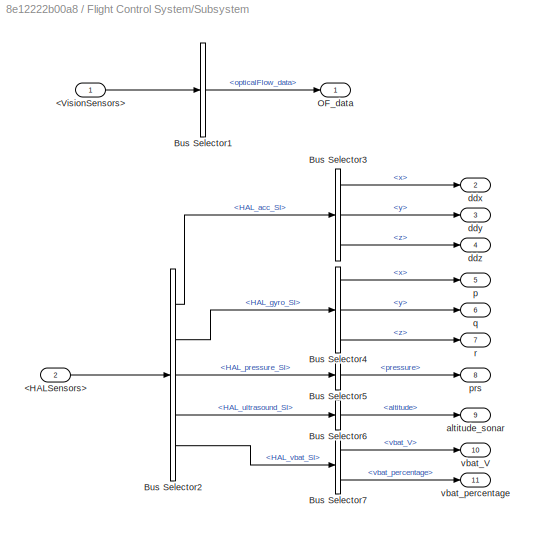
BLOCK [SubSystem] Flight Control System/Subsystem
  Ports = [2, 11]
  RequestExecContextInheritance = off
BLOCK [Inport] Flight Control System/Subsystem/<HALSensors>
  Port = 2
BLOCK [Inport] Flight Control System/Subsystem/<VisionSensors>
BLOCK [BusSelector] Flight Control System/Subsystem/Bus Selector1
  OutputSignals = opticalFlow_data
  Ports = [1, 1]
BLOCK [BusSelector] Flight Control System/Subsystem/Bus Selector2
  OutputSignals = HAL_acc_SI,HAL_gyro_SI,HAL_pressure_SI,HAL_ultrasound_SI,HAL_vbat_SI
  Ports = [1, 5]
BLOCK [BusSelector] Flight Control System/Subsystem/Bus Selector3
  OutputSignals = x,y,z
  Ports = [1, 3]
BLOCK [BusSelector] Flight Control System/Subsystem/Bus Selector4
  OutputSignals = x,y,z
  Ports = [1, 3]
BLOCK [BusSelector] Flight Control System/Subsystem/Bus Selector5
  OutputSignals = pressure
  Ports = [1, 1]
BLOCK [BusSelector] Flight Control System/Subsystem/Bus Selector6
  OutputSignals = altitude
  Ports = [1, 1]
BLOCK [BusSelector] Flight Control System/Subsystem/Bus Selector7
  OutputSignals = vbat_V,vbat_percentage
  Ports = [1, 2]
BLOCK [Outport] Flight Control System/Subsystem/OF_data
  VectorParamsAs1DForOutWhenUnconnected = off
BLOCK [Outport] Flight Control System/Subsystem/altitude_sonar
  Port = 9
  VectorParamsAs1DForOutWhenUnconnected = off
BLOCK [Outport] Flight Control System/Subsystem/ddx
  Port = 2
  VectorParamsAs1DForOutWhenUnconnected = off
BLOCK [Outport] Flight Control System/Subsystem/ddy
  Port = 3
  VectorParamsAs1DForOutWhenUnconnected = off
BLOCK [Outport] Flight Control System/Subsystem/ddz
  Port = 4
  VectorParamsAs1DForOutWhenUnconnected = off
BLOCK [Outport] Flight Control System/Subsystem/p
  Port = 5
  VectorParamsAs1DForOutWhenUnconnected = off
BLOCK [Outport] Flight Control System/Subsystem/prs
  Port = 8
  VectorParamsAs1DForOutWhenUnconnected = off
BLOCK [Outport] Flight Control System/Subsystem/q
  Port = 6
  VectorParamsAs1DForOutWhenUnconnected = off
BLOCK [Outport] Flight Control System/Subsystem/r
  Port = 7
  VectorParamsAs1DForOutWhenUnconnected = off
BLOCK [Outport] Flight Control System/Subsystem/vbat_V
  Port = 10
  VectorParamsAs1DForOutWhenUnconnected = off
BLOCK [Outport] Flight Control System/Subsystem/vbat_percentage
  Port = 11
  VectorParamsAs1DForOutWhenUnconnected = off
BLOCK [Sum] Flight Control System/Subtract
  IconShape = rectangular
  Inputs = +-
  NameLocation = top
  Ports = [2, 1]
BLOCK [Sum] Flight Control System/Sum
  Inputs = |+-
  Ports = [2, 1]
BLOCK [Sum] Flight Control System/Sum1
  Inputs = |+-
  Ports = [2, 1]
BLOCK [Sum] Flight Control System/Sum10
  Inputs = |++
  Ports = [2, 1]
BLOCK [Sum] Flight Control System/Sum11
  Inputs = |+-
  Ports = [2, 1]
BLOCK [Sum] Flight Control System/Sum12
  Inputs = |+-
  Ports = [2, 1]
BLOCK [Sum] Flight Control System/Sum13
  Inputs = |++
  Ports = [2, 1]
BLOCK [Sum] Flight Control System/Sum14
  Inputs = |++
  Ports = [2, 1]
BLOCK [Sum] Flight Control System/Sum15
  Inputs = |++
  NameLocation = right
  Ports = [2, 1]
BLOCK [Sum] Flight Control System/Sum16
  Inputs = |++
  Ports = [2, 1]
BLOCK [Sum] Flight Control System/Sum17
  Inputs = |+-
  Ports = [2, 1]
BLOCK [Sum] Flight Control System/Sum18
  Inputs = |+-
  Ports = [2, 1]
BLOCK [Sum] Flight Control System/Sum19
  Inputs = |++
  Ports = [2, 1]
BLOCK [Sum] Flight Control System/Sum2
  Inputs = |+-
  Ports = [2, 1]
BLOCK [Sum] Flight Control System/Sum20
  Inputs = |++
  NameLocation = left
  Ports = [2, 1]
BLOCK [Sum] Flight Control System/Sum21
  Inputs = |++
  Ports = [2, 1]
BLOCK [Sum] Flight Control System/Sum22
  Commented = on
  Inputs = |++
  Ports = [2, 1]
BLOCK [Sum] Flight Control System/Sum3
  Inputs = |+-
  Ports = [2, 1]
BLOCK [Sum] Flight Control System/Sum4
  Inputs = |+-
  Ports = [2, 1]
BLOCK [Sum] Flight Control System/Sum5
  Inputs = |+-
  Ports = [2, 1]
BLOCK [Sum] Flight Control System/Sum6
  Inputs = |+-
  Ports = [2, 1]
BLOCK [Sum] Flight Control System/Sum7
  Inputs = |+-
  Ports = [2, 1]
BLOCK [Sum] Flight Control System/Sum8
  Inputs = |+-
  Ports = [2, 1]
BLOCK [Sum] Flight Control System/Sum9
  Inputs = |+-
  Ports = [2, 1]
BLOCK [Switch] Flight Control System/Switch1
  Commented = on
  Criteria = u2 > Threshold
  InputSameDT = off
  SaturateOnIntegerOverflow = off
BLOCK [Switch] Flight Control System/Switch2
  Criteria = u2 > Threshold
  InputSameDT = off
  SaturateOnIntegerOverflow = off
BLOCK [Terminator] Flight Control System/Terminator
BLOCK [Terminator] Flight Control System/Terminator1
BLOCK [Terminator] Flight Control System/Terminator3
BLOCK [Terminator] Flight Control System/Terminator4
BLOCK [Terminator] Flight Control System/Terminator5
BLOCK [Terminator] Flight Control System/Terminator6
BLOCK [Terminator] Flight Control System/Terminator7
BLOCK [Terminator] Flight Control System/Terminator8
BLOCK [ToWorkspace] Flight Control System/To Workspace
  FixptAsFi = on
  MaxDataPoints = inf
  Ports = [1]
  SampleTime = -1
  SaveFormat = Structure With Time
  VariableName = noisy_q
BLOCK [Mux] Flight Control System/W
  DisplayOption = bar
  Ports = [4, 1]
BLOCK [Outport] Motors
  OutDataTypeStr = single
  PortDimensions = [1 4]
  VectorParamsAs1DForOutWhenUnconnected = off
BLOCK [Inport] Sensors
  BusOutputAsStruct = on
  OutDataTypeStr = Bus: SensorsBus
  Port = 2
ANNOTATION (root): Use this model to design an algorithm to spin the motors one after the other on PARROT Minidrone. Getting Started: Add Simulation Sources blocks from: Simulink Library Use the preconfigured Sensors inport block. Configure Parrot Minidrone hardware: Open Model Configuration Parameters dialog Under the Hardware Implementation option, select the desired PARROT Minidrone from the Hardware board parame...<+465ch>
ANNOTATION (root): DO NOT MODIFY these input ports and signal properties.
ANNOTATION (root): DO NOT MODIFY these output ports and signal properties. Always ensure the 'Motors' outport is fed with a 1 x 4 single vector. Always ensure the 'Flag' outport is fed with a 1 x 1 uint8 value.
ANNOTATION (root): Model your control logic inside this subsystem using the Sensor values and output the Motor values
ANNOTATION (root): Project Title:
ANNOTATION Flight Control System: Aileron Control
ANNOTATION Flight Control System: Aileron System Kalman Filter
ANNOTATION Flight Control System: Angle measures from accelerometer
ANNOTATION Flight Control System: Elevator Control
ANNOTATION Flight Control System: Elevator System Kalman Filter
ANNOTATION Flight Control System: Model an error condition and feed the value to 'Flag' outport block. Value '0' indicates that all the flight conditions are good and the drone can continue its flight. A non-zero value indicates an error condition, and stops the drone flight.
ANNOTATION Flight Control System: Rudder Control
ANNOTATION Flight Control System: Subsystem1
ANNOTATION Flight Control System: The SensorsBus contains data from sensors like accelerometer, gyroscope, ultrasonic, pressure, and optical flow data.
ANNOTATION Flight Control System: Throttle Control
ANNOTATION Flight Control System: Throttle System Kalman Filter
ANNOTATION Flight Control System: Velocity estimates from optical flow
LINE AC cmd:1 -> Flight Control System:1
LINE Flight Control System/AC cmd:1 -> Flight Control System/Bus Selector:1
LINE Flight Control System/Bus Selector1:1 -> Flight Control System/Subsystem:1
LINE Flight Control System/Bus Selector1:2 -> Flight Control System/Subsystem:2
LINE Flight Control System/Bus Selector1:3 -> Flight Control System/Goto15:1
LINE Flight Control System/Bus Selector:1 -> Flight Control System/Terminator3:1
LINE Flight Control System/Bus Selector:2 -> Flight Control System/Terminator4:1
LINE Flight Control System/Bus Selector:3 -> Flight Control System/Terminator5:1
LINE Flight Control System/Bus Selector:4 -> Flight Control System/Terminator6:1
LINE Flight Control System/Bus Selector:5 -> Flight Control System/Terminator7:1
LINE Flight Control System/Cast To Double1:1 -> Flight Control System/Mux1:2
LINE Flight Control System/Cast To Double2:1 -> Flight Control System/Rate Transition2:1
NET Flight Control System/Cast To Double3:1 -> Flight Control System/Rate Transition:1, Flight Control System/To Workspace:1
LINE Flight Control System/Cast To Double4:1 -> Flight Control System/Mux4:1
LINE Flight Control System/Cast To Double5:1 -> Flight Control System/Mux4:2
LINE Flight Control System/Cast To Double6:1 -> Flight Control System/Rate Transition4:1
LINE Flight Control System/Cast To Double7:1 -> Flight Control System/Rate Transition5:1
LINE Flight Control System/Cast To Double8:1 -> Flight Control System/Mux5:1
LINE Flight Control System/Cast To Double:1 -> Flight Control System/Mux1:1
NET Flight Control System/Cast To Single1:1 -> Flight Control System/Demux10:1, Flight Control System/Scope11:1
NET Flight Control System/Cast To Single2:1 -> Flight Control System/Demux12:1, Flight Control System/Scope15:1
LINE Flight Control System/Cast To Single3:1 -> Flight Control System/Sum19:2
NET Flight Control System/Cast To Single:1 -> Flight Control System/Demux11:1, Flight Control System/Scope14:1
LINE Flight Control System/Compare To Constant1:1 -> Flight Control System/Switch1:2
LINE Flight Control System/Compare To Constant2:1 -> Flight Control System/Switch2:2
LINE Flight Control System/Constant10:1 -> Flight Control System/Manual Switch2:2
LINE Flight Control System/Constant11:1 -> Flight Control System/Manual Switch2:1
LINE Flight Control System/Constant12:1 -> Flight Control System/Mux6:2
LINE Flight Control System/Constant13:1 -> Flight Control System/Mux6:3
LINE Flight Control System/Constant14:1 -> Flight Control System/Switch1:3
LINE Flight Control System/Constant15:1 -> Flight Control System/Mux6:4
LINE Flight Control System/Constant16:1 -> Flight Control System/Manual Switch3:2
LINE Flight Control System/Constant17:1 -> Flight Control System/Switch2:3
LINE Flight Control System/Constant18:1 -> Flight Control System/Sum21:1
LINE Flight Control System/Constant19:1 -> Flight Control System/Mux:3
LINE Flight Control System/Constant1:1 -> Flight Control System/Manual Switch:2
LINE Flight Control System/Constant20:1 -> Flight Control System/Mux:4
LINE Flight Control System/Constant2:1 -> Flight Control System/Manual Switch:1
LINE Flight Control System/Constant3:1 -> Flight Control System/Product1:2
LINE Flight Control System/Constant4:1 -> Flight Control System/Mux3:2
LINE Flight Control System/Constant5:1 -> Flight Control System/Sum13:2
LINE Flight Control System/Constant6:1 -> Flight Control System/Mux3:3
LINE Flight Control System/Constant7:1 -> Flight Control System/Mux3:4
LINE Flight Control System/Constant8:1 -> Flight Control System/MATLAB Function7:1
LINE Flight Control System/Constant9:1 -> Flight Control System/Mux:2
LINE Flight Control System/Constant:1 -> Flight Control System/Subtract:1
LINE Flight Control System/Delay:1 -> Flight Control System/Sum21:2
NET Flight Control System/Demux10:1 -> Flight Control System/Goto20:1, Flight Control System/Scope17:1
NET Flight Control System/Demux10:2 -> Flight Control System/Goto24:1, Flight Control System/Scope16:1
NET Flight Control System/Demux11:1 -> Flight Control System/Goto21:1, Flight Control System/Scope:1
NET Flight Control System/Demux11:2 -> Flight Control System/Goto23:1, Flight Control System/Scope10:1
NET Flight Control System/Demux12:1 -> Flight Control System/Goto25:1, Flight Control System/Scope26:1
LINE Flight Control System/Demux12:2 -> Flight Control System/Goto26:1
LINE Flight Control System/Demux14:1 -> Flight Control System/MATLAB Function3:3
LINE Flight Control System/Demux14:2 -> Flight Control System/Mux5:2
LINE Flight Control System/Demux14:3 -> Flight Control System/Mux5:3
LINE Flight Control System/Demux14:4 -> Flight Control System/Mux5:4
LINE Flight Control System/Demux1:1 -> Flight Control System/Gain2:1
LINE Flight Control System/Demux1:2 -> Flight Control System/Gain5:1
LINE Flight Control System/Demux1:3 -> Flight Control System/Gain9:1
LINE Flight Control System/Demux1:4 -> Flight Control System/Gain14:1
LINE Flight Control System/Demux2:1 -> Flight Control System/Goto11:1
LINE Flight Control System/Demux2:2 -> Flight Control System/Goto12:1
LINE Flight Control System/Demux3:1 -> Flight Control System/Goto16:1
LINE Flight Control System/Demux3:2 -> Flight Control System/Goto17:1
LINE Flight Control System/Demux3:3 -> Flight Control System/Goto18:1
LINE Flight Control System/Demux3:4 -> Flight Control System/Goto19:1
LINE Flight Control System/Demux3:5 -> Flight Control System/Goto22:1
LINE Flight Control System/Demux3:6 -> Flight Control System/Goto27:1
LINE Flight Control System/Demux3:7 -> Flight Control System/Goto28:1
LINE Flight Control System/Demux3:8 -> Flight Control System/Goto29:1
LINE Flight Control System/Demux:1 -> Flight Control System/Goto3:1
LINE Flight Control System/Demux:2 -> Flight Control System/Goto2:1
LINE Flight Control System/Demux:3 -> Flight Control System/Goto:1
LINE Flight Control System/From10:1 -> Flight Control System/Scope4:1
LINE Flight Control System/From11:1 -> Flight Control System/Scope5:1
LINE Flight Control System/From12:1 -> Flight Control System/Scope6:1
LINE Flight Control System/From13:1 -> Flight Control System/Scope7:1
LINE Flight Control System/From14:1 -> Flight Control System/Scope8:1
LINE Flight Control System/From15:1 -> Flight Control System/Scope9:1
LINE Flight Control System/From16:1 -> Flight Control System/Scope12:1
LINE Flight Control System/From17:1 -> Flight Control System/Scope13:1
LINE Flight Control System/From18:1 -> Flight Control System/Product1:1
LINE Flight Control System/From19:1 -> Flight Control System/Mux2:1
LINE Flight Control System/From1:1 -> Flight Control System/MATLAB Function:1
LINE Flight Control System/From20:1 -> Flight Control System/Mux2:2
LINE Flight Control System/From21:1 -> Flight Control System/Cast To Double3:1
NET Flight Control System/From22:1 -> Flight Control System/Cast To Double4:1, Flight Control System/Scope20:1, Flight Control System/Scope31:1
NET Flight Control System/From23:1 -> Flight Control System/Cast To Double5:1, Flight Control System/Scope21:1, Flight Control System/Scope32:1
LINE Flight Control System/From24:1 -> Flight Control System/Sum2:2
LINE Flight Control System/From25:1 -> Flight Control System/Sum3:2
LINE Flight Control System/From26:1 -> Flight Control System/Gain7:1
LINE Flight Control System/From27:1 -> Flight Control System/MATLAB Function3:1
LINE Flight Control System/From28:1 -> Flight Control System/Gain10:1
LINE Flight Control System/From29:1 -> Flight Control System/Gain8:1
LINE Flight Control System/From2:1 -> Flight Control System/MATLAB Function:2
LINE Flight Control System/From30:1 -> Flight Control System/Gain13:1
LINE Flight Control System/From31:1 -> Flight Control System/MATLAB Function1:2
LINE Flight Control System/From32:1 -> Flight Control System/Gain3:1
LINE Flight Control System/From33:1 -> Flight Control System/Gain4:1
LINE Flight Control System/From34:1 -> Flight Control System/Gain6:1
LINE Flight Control System/From35:1 -> Flight Control System/Subtract:2
LINE Flight Control System/From36:1 -> Flight Control System/Sum16:1
NET Flight Control System/From37:1 -> Flight Control System/Cast To Double7:1, Flight Control System/Scope29:1
LINE Flight Control System/From38:1 -> Flight Control System/Sum12:2
LINE Flight Control System/From39:1 -> Flight Control System/Sum17:2
NET Flight Control System/From3:1 -> Flight Control System/Cast To Double:1, Flight Control System/Scope18:1
LINE Flight Control System/From40:1 -> Flight Control System/Sum18:2
LINE Flight Control System/From41:1 -> Flight Control System/MATLAB Function7:2
LINE Flight Control System/From42:1 -> Flight Control System/MATLAB Function7:3
LINE Flight Control System/From43:1 -> Flight Control System/MATLAB Function3:2
LINE Flight Control System/From44:1 -> Flight Control System/Scope25:1
LINE Flight Control System/From45:1 -> Flight Control System/Terminator8:1
LINE Flight Control System/From46:1 -> Flight Control System/MATLAB Function1:1
LINE Flight Control System/From47:1 -> Flight Control System/MATLAB Function1:3
LINE Flight Control System/From49:1 -> Flight Control System/Compare To Constant1:1
NET Flight Control System/From4:1 -> Flight Control System/Cast To Double1:1, Flight Control System/Scope19:1
LINE Flight Control System/From50:1 -> Flight Control System/Compare To Constant2:1
LINE Flight Control System/From52:1 -> Flight Control System/Gain:1
LINE Flight Control System/From5:1 -> Flight Control System/Cast To Double2:1
LINE Flight Control System/From62:1 -> Flight Control System/Gain1:1
LINE Flight Control System/From6:1 -> Flight Control System/MATLAB Function:3
LINE Flight Control System/From7:1 -> Flight Control System/Scope1:1
LINE Flight Control System/From8:1 -> Flight Control System/Scope2:1
LINE Flight Control System/From9:1 -> Flight Control System/Scope3:1
LINE Flight Control System/From:1 -> Flight Control System/Demux3:1
LINE Flight Control System/Gain10:1 -> Flight Control System/Sum9:2
LINE Flight Control System/Gain11:1 -> Flight Control System/Sqrt1:1
LINE Flight Control System/Gain12:1 -> Flight Control System/Goto10:1
LINE Flight Control System/Gain13:1 -> Flight Control System/Sum11:2
LINE Flight Control System/Gain14:1 -> Flight Control System/Sum11:1
LINE Flight Control System/Gain1:1 -> Flight Control System/Sum1:2
LINE Flight Control System/Gain2:1 -> Flight Control System/Sum:1
LINE Flight Control System/Gain3:1 -> Flight Control System/Sum4:2
LINE Flight Control System/Gain4:1 -> Flight Control System/Sum5:2
LINE Flight Control System/Gain5:1 -> Flight Control System/Sum4:1
LINE Flight Control System/Gain6:1 -> Flight Control System/Sum6:2
LINE Flight Control System/Gain7:1 -> Flight Control System/Sum7:2
LINE Flight Control System/Gain8:1 -> Flight Control System/Sum8:2
LINE Flight Control System/Gain9:1 -> Flight Control System/Sum7:1
LINE Flight Control System/Gain:1 -> Flight Control System/Sum:2
LINE Flight Control System/Kalman Filter, Aileron:1 -> Flight Control System/Cast To Single:1
LINE Flight Control System/Kalman Filter, Elevator:1 -> Flight Control System/Cast To Single1:1
LINE Flight Control System/Kalman Filter, Throttle:1 -> Flight Control System/Cast To Single2:1
NET Flight Control System/MATLAB Function1:1 -> Flight Control System/Display1:1, Flight Control System/Goto30:1
LINE Flight Control System/MATLAB Function3:1 -> Flight Control System/Cast To Double8:1
LINE Flight Control System/MATLAB Function7:1 -> Flight Control System/Sum16:2
LINE Flight Control System/MATLAB Function:1 -> Flight Control System/Goto13:1
LINE Flight Control System/MATLAB Function:2 -> Flight Control System/Goto14:1
LINE Flight Control System/Manual Switch3:1 -> Flight Control System/Sum14:1
LINE Flight Control System/Manual Switch:1 -> Flight Control System/Flag:1
LINE Flight Control System/MatrixMultiply1:1 -> Flight Control System/Demux2:1
LINE Flight Control System/Motor bias:1 -> Flight Control System/Cast To Single3:1
LINE Flight Control System/Mux1:1 -> Flight Control System/Rate Transition3:1
LINE Flight Control System/Mux2:1 -> Flight Control System/MatrixMultiply1:2
LINE Flight Control System/Mux3:1 -> Flight Control System/Sum14:2
LINE Flight Control System/Mux4:1 -> Flight Control System/Rate Transition1:1
LINE Flight Control System/Mux5:1 -> Flight Control System/Manual Switch3:1
LINE Flight Control System/Mux6:1 -> Flight Control System/Demux14:1
LINE Flight Control System/Mux:1 -> Flight Control System/Switch1:1
LINE Flight Control System/Product1:1 -> Flight Control System/MatrixMultiply1:1
LINE Flight Control System/Ramp1:1 -> Flight Control System/Sum15:1
LINE Flight Control System/Ramp2:1 -> Flight Control System/Sum15:2
LINE Flight Control System/Ramp3:1 -> Flight Control System/Sum20:1
LINE Flight Control System/Ramp4:1 -> Flight Control System/Sum20:2
LINE Flight Control System/Ramp5:1 -> Flight Control System/Sum22:2
LINE Flight Control System/Ramp:1 -> Flight Control System/Sum22:1
LINE Flight Control System/Rate Transition1:1 -> Flight Control System/Kalman Filter, Elevator:2
NET Flight Control System/Rate Transition2:1 -> Flight Control System/Kalman Filter, Aileron:1, Flight Control System/Scope27:1
LINE Flight Control System/Rate Transition3:1 -> Flight Control System/Kalman Filter, Aileron:2
LINE Flight Control System/Rate Transition4:1 -> Flight Control System/Kalman Filter, Throttle:1
LINE Flight Control System/Rate Transition5:1 -> Flight Control System/Kalman Filter, Throttle:2
LINE Flight Control System/Rate Transition:1 -> Flight Control System/Kalman Filter, Elevator:1
LINE Flight Control System/Reshape1:1 -> Flight Control System/Motors:1
LINE Flight Control System/Saturation1:1 -> Flight Control System/Sum19:1
LINE Flight Control System/Sensors:1 -> Flight Control System/Bus Selector1:1
LINE Flight Control System/Sqrt1:1 -> Flight Control System/Saturation1:1
LINE Flight Control System/Subsystem/<HALSensors>:1 -> Flight Control System/Subsystem/Bus Selector2:1
LINE Flight Control System/Subsystem/<VisionSensors>:1 -> Flight Control System/Subsystem/Bus Selector1:1
LINE Flight Control System/Subsystem/Bus Selector1:1 -> Flight Control System/Subsystem/OF_data:1
LINE Flight Control System/Subsystem/Bus Selector2:1 -> Flight Control System/Subsystem/Bus Selector3:1
LINE Flight Control System/Subsystem/Bus Selector2:2 -> Flight Control System/Subsystem/Bus Selector4:1
LINE Flight Control System/Subsystem/Bus Selector2:3 -> Flight Control System/Subsystem/Bus Selector5:1
LINE Flight Control System/Subsystem/Bus Selector2:4 -> Flight Control System/Subsystem/Bus Selector6:1
LINE Flight Control System/Subsystem/Bus Selector2:5 -> Flight Control System/Subsystem/Bus Selector7:1
LINE Flight Control System/Subsystem/Bus Selector3:1 -> Flight Control System/Subsystem/ddx:1
LINE Flight Control System/Subsystem/Bus Selector3:2 -> Flight Control System/Subsystem/ddy:1
LINE Flight Control System/Subsystem/Bus Selector3:3 -> Flight Control System/Subsystem/ddz:1
LINE Flight Control System/Subsystem/Bus Selector4:1 -> Flight Control System/Subsystem/p:1
LINE Flight Control System/Subsystem/Bus Selector4:2 -> Flight Control System/Subsystem/q:1
LINE Flight Control System/Subsystem/Bus Selector4:3 -> Flight Control System/Subsystem/r:1
LINE Flight Control System/Subsystem/Bus Selector5:1 -> Flight Control System/Subsystem/prs:1
LINE Flight Control System/Subsystem/Bus Selector6:1 -> Flight Control System/Subsystem/altitude_sonar:1
LINE Flight Control System/Subsystem/Bus Selector7:1 -> Flight Control System/Subsystem/vbat_V:1
LINE Flight Control System/Subsystem/Bus Selector7:2 -> Flight Control System/Subsystem/vbat_percentage:1
LINE Flight Control System/Subsystem:1 -> Flight Control System/Demux:1
LINE Flight Control System/Subsystem:10 -> Flight Control System/Terminator:1
LINE Flight Control System/Subsystem:11 -> Flight Control System/Terminator1:1
LINE Flight Control System/Subsystem:2 -> Flight Control System/Sum2:1
LINE Flight Control System/Subsystem:3 -> Flight Control System/Sum3:1
LINE Flight Control System/Subsystem:4 -> Flight Control System/Sum10:1
LINE Flight Control System/Subsystem:5 -> Flight Control System/Sum12:1
LINE Flight Control System/Subsystem:6 -> Flight Control System/Sum17:1
LINE Flight Control System/Subsystem:7 -> Flight Control System/Sum18:1
LINE Flight Control System/Subsystem:8 -> Flight Control System/Goto9:1
LINE Flight Control System/Subsystem:9 -> Flight Control System/Gain12:1
LINE Flight Control System/Subtract:1 -> Flight Control System/Sum10:2
LINE Flight Control System/Sum10:1 -> Flight Control System/Goto5:1
LINE Flight Control System/Sum11:1 -> Flight Control System/W:4
LINE Flight Control System/Sum12:1 -> Flight Control System/Goto6:1
LINE Flight Control System/Sum13:1 -> Flight Control System/Switch2:1
NET Flight Control System/Sum14:1 -> Flight Control System/Demux1:1, Flight Control System/Scope23:1
LINE Flight Control System/Sum15:1 -> Flight Control System/Mux3:1
NET Flight Control System/Sum16:1 -> Flight Control System/Cast To Double6:1, Flight Control System/Scope28:1
LINE Flight Control System/Sum17:1 -> Flight Control System/Goto7:1
LINE Flight Control System/Sum18:1 -> Flight Control System/Goto8:1
NET Flight Control System/Sum19:1 -> Flight Control System/Reshape1:1, Flight Control System/Scope24:1
LINE Flight Control System/Sum1:1 -> Flight Control System/Sum13:1
LINE Flight Control System/Sum20:1 -> Flight Control System/Mux6:1
NET Flight Control System/Sum21:1 -> Flight Control System/Delay:1, Flight Control System/Goto31:1
LINE Flight Control System/Sum22:1 -> Flight Control System/Mux:1
LINE Flight Control System/Sum2:1 -> Flight Control System/Goto1:1
LINE Flight Control System/Sum3:1 -> Flight Control System/Goto4:1
LINE Flight Control System/Sum4:1 -> Flight Control System/Sum5:1
LINE Flight Control System/Sum5:1 -> Flight Control System/Sum6:1
LINE Flight Control System/Sum6:1 -> Flight Control System/W:2
LINE Flight Control System/Sum7:1 -> Flight Control System/Sum8:1
LINE Flight Control System/Sum8:1 -> Flight Control System/Sum9:1
NET Flight Control System/Sum9:1 -> Flight Control System/Display:1, Flight Control System/W:3
LINE Flight Control System/Sum:1 -> Flight Control System/Sum1:1
LINE Flight Control System/Switch2:1 -> Flight Control System/W:1
NET Flight Control System/W:1 -> Flight Control System/Gain11:1, Flight Control System/Scope22:1
LINE Flight Control System:1 -> Motors:1
LINE Flight Control System:2 -> Flag:1
LINE Sensors:1 -> Flight Control System:2
note: NET lines group one-source signal fan-out (src -> all destinations, sorted); 1:1 wires keep LINE
CHART Flight Control System/MATLAB Function1 states=1 transitions=1
  STATE_LABEL 'eML_blk_kernel()'
  STATE_LABEL 'SCRIPT:\nfunction z_p = fcn(pressure,pres_0,theta_kf) \ng = 9.8; % acceleration due to gravity m/s^2\nM = 0.0289644; % molar mass of air in kg/mol\nR = 8.31432; % universal gas constant Nm/mol/k\np0 = 101325; % Pa standard pressure\n\nT =288.15;  % Assumed temperature in kelvin\nK =-g*M/R/T;\nz_p = -(1/K.*log(pressure./p0) - 1/K.*log(pres_0./p0))/cos(theta_kf);\n'
CHART Flight Control System/MATLAB Function states=1 transitions=1
  STATE_LABEL 'eML_blk_kernel()'
  STATE_LABEL 'SCRIPT:\nfunction [theta_measured,phi_measured]= fcn(a_x,a_y,a_z)\ntheta_measured = a_x / sqrt(a_y^2 + a_z^2);\nphi_measured = a_y/a_z;\n'
CHART Flight Control System/MATLAB Function3 states=1 transitions=1
  STATE_LABEL 'eML_blk_kernel()'
  STATE_LABEL 'SCRIPT:\nfunction Pbz_cmd = fcn(theta_kf,phi_kf,P_D_cmd)\n    phi = phi_kf;\n    theta = theta_kf;\n    psi = 0;\n    R_phi = [1 0 0;\n             0 cos(phi) sin(phi);\n             0 -sin(phi) cos(phi)];\n    R_theta = [cos(theta) 0 -sin(theta);\n               0 1 0;\n               sin(theta) 0 cos(theta)];\n    R_psi = [cos(psi) sin(psi) 0;\n             -sin(psi) cos(psi) 0;\n             0 0 1];\n    R =...<+75ch>'
CHART Flight Control System/MATLAB Function7 states=1 transitions=1
  STATE_LABEL 'eML_blk_kernel()'
  STATE_LABEL 'SCRIPT:\nfunction bias = fcn(g,phi,theta)\npsi = 0;\nR_phi = [1 0 0;\n         0 cos(phi) sin(phi);\n         0 -sin(phi) cos(phi)];\nR_theta = [cos(theta) 0 -sin(theta);\n           0 1 0;\n           sin(theta) 0 cos(theta)];\nR_psi = [cos(psi) sin(psi) 0;\n         -sin(psi) cos(psi) 0;\n         0 0 1];\nR = R_phi*R_theta*R_psi;\nG_b = R*[0; 0; g];\nbias = G_b(3);'
CHART  states=0 transitions=0
CHART  states=0 transitions=0
CHART  states=0 transitions=0
CHART  states=0 transitions=0
